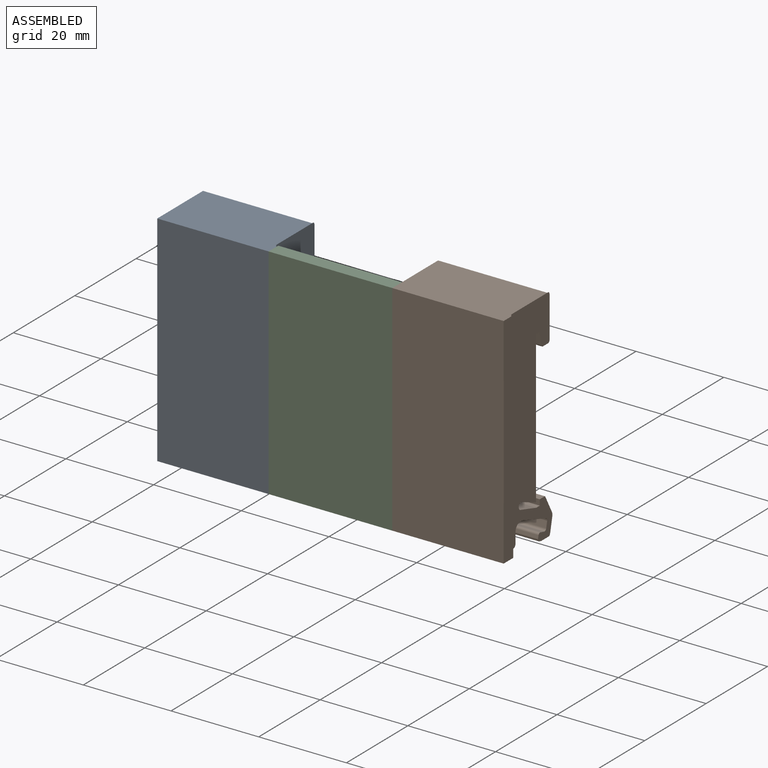
[diagram: assembled view]
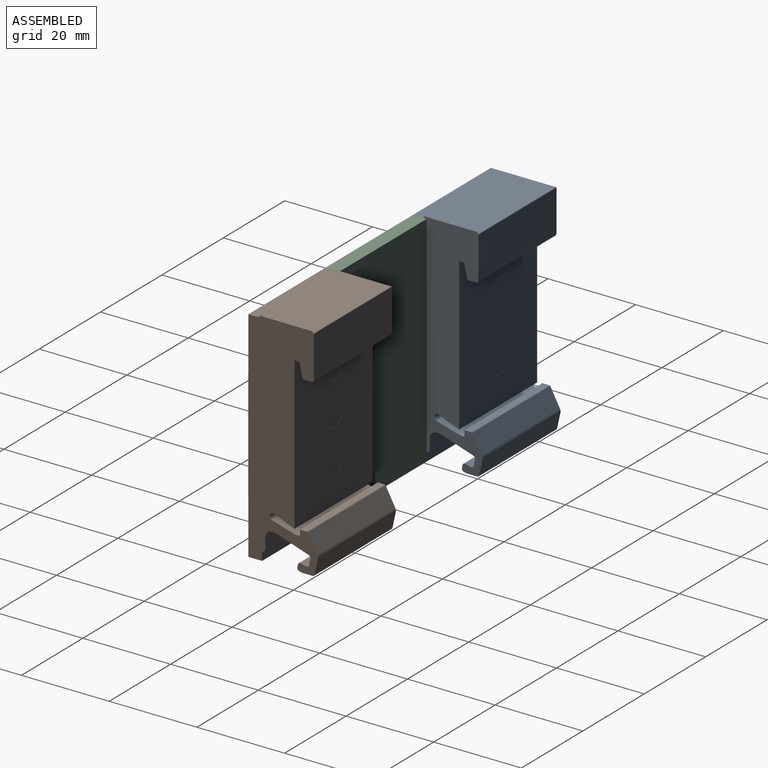
[diagram: assembled view, second angle]
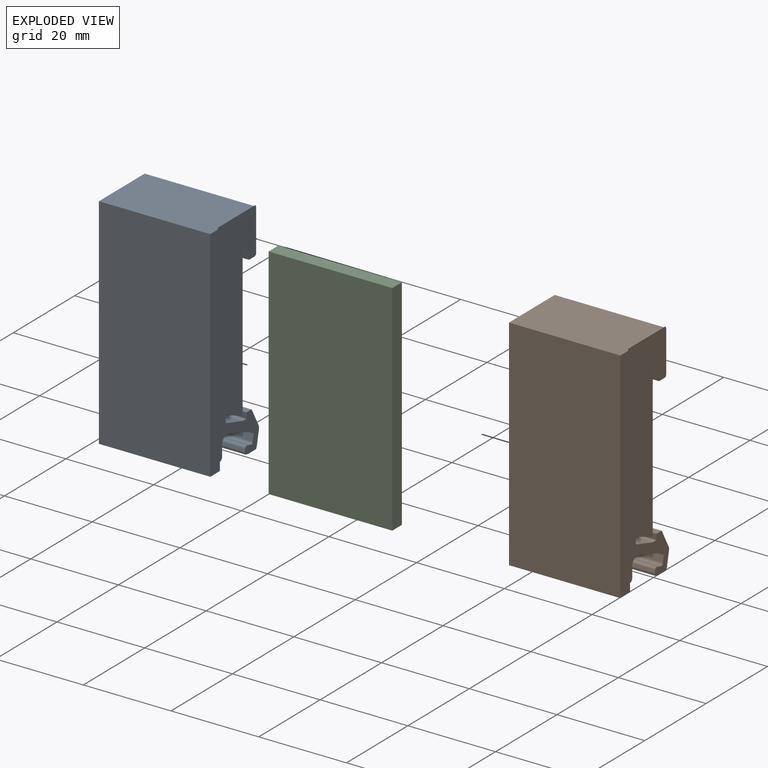
[diagram: exploded view]
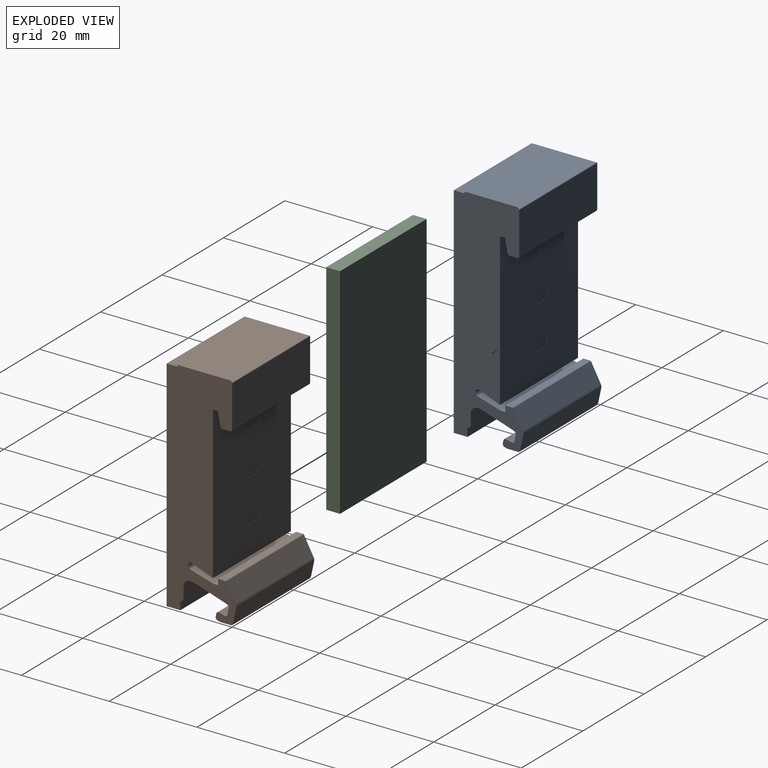
[diagram: exploded view, second angle]
ASSEMBLY  parts=3 mates=2
PART A: 287 faces, bbox 50.4x15.9x25.4 mm
  f0: plane 50x15.88mm, normal (0,0,-1), area 544.1mm2, adj f1,f4,f5,f7,f8,f14,f17,f23
  f1: plane 50x25.4mm, normal (0,1,0), area 1270mm2, adj f0,f2,f3,f6,f236,f237,f277,f278
  f2: plane 12.3x3.13mm, normal (0,0,1), area 31.9mm2, adj f1,f5,f207,f210,f213,f215,f217,f233
  f3: plane 50.4x15.87mm, normal (0,0,1), area 486.7mm2, adj f1,f7,f8,f9,f11,f13,f15,f18
  f4: plane 9.05x0.13mm, normal (0.28,-0.96,0), area 0.6mm2, adj f0,f32,f277
  f5: plane 25.4x1.9mm, normal (0,-1,0), area 48.2mm2, adj f0,f2,f254,f278
  f6: plane 12.3x2.48mm, normal (0,0,1), area 30.5mm2, adj f1,f234,f237,f277
  f7: plane 25.4x0.69mm, normal (-0.97,0.25,0), area 18.1mm2, adj f0,f3,f235,f275
  f8: plane 25.4x0.19mm, normal (-0.65,-0.76,0), area 6.2mm2, adj f0,f3,f261,f275
  f9: plane 17.27x0.12mm, normal (0.67,0.74,0), area 1.4mm2, adj f3,f10,f16
  f10: plane 17.27x0.19mm, normal (0.49,0.87,0), area 1.9mm2, adj f9,f11,f279
  f11: plane 17.27x0.15mm, normal (0.41,0.91,0), area 1.4mm2, adj f3,f10,f12
  f12: plane 17.27x0.79mm, normal (0.22,0.98,0), area 7mm2, adj f11,f13,f286
  f13: plane 17.27x0.77mm, normal (0.21,0.98,0), area 6.8mm2, adj f3,f12,f14
  f14: plane 25.4x0.32mm, normal (-0.14,0.99,0), area 5.2mm2, adj f0,f13,f15,f23,f286
  f15: plane 17.27x0.32mm, normal (-0.15,0.99,0), area 2.8mm2, adj f3,f14,f21
  f16: plane 17.27x0.12mm, normal (0.78,0.62,0), area 1.3mm2, adj f9,f20,f280
  f17: plane 25.4x0.19mm, normal (1,-0.03,0), area 3.2mm2, adj f0,f18,f256,f281
  f18: plane 17.27x0.21mm, normal (1,0,0), area 1.8mm2, adj f3,f17,f19
  f19: plane 17.27x0.14mm, normal (0.94,0.34,0), area 1.3mm2, adj f18,f20,f281
  f20: plane 17.27x0.19mm, normal (0.91,0.42,0), area 1.8mm2, adj f3,f16,f19
  f21: plane 17.27x0.14mm, normal (-0.57,0.82,0), area 1.4mm2, adj f3,f15,f22
  f22: plane 25.4x0.14mm, normal (-0.56,0.83,0), area 2.1mm2, adj f21,f23,f235
  f23: plane 8.13x0.17mm, normal (-0.49,0.87,0), area 0.8mm2, adj f0,f14,f22
  f24: plane 25.4x0.26mm, normal (-0.9,-0.44,0), area 3.7mm2, adj f3,f25,f273
  f25: plane 25.4x0.35mm, normal (-0.88,-0.47,0), area 5mm2, adj f0,f24,f26
  f26: plane 25.4x0.23mm, normal (-0.75,-0.67,0), area 2.5mm2, adj f0,f25,f27
  f27: plane 25.4x0.52mm, normal (-0.66,-0.75,0), area 8.9mm2, adj f3,f26,f28
  f28: plane 25.4x0.34mm, normal (-0.63,-0.78,0), area 2.6mm2, adj f0,f27,f29
  f29: plane 25.4x0.28mm, normal (-0.45,-0.89,0), area 3.9mm2, adj f0,f28,f30
  f30: plane 25.4x0.4mm, normal (-0.27,-0.96,0), area 4mm2, adj f0,f29,f31
  f31: plane 25.4x0.4mm, normal (-0.29,-0.96,0), area 5.3mm2, adj f3,f30,f274
  f32: plane 25.4x0.35mm, normal (0.35,-0.94,0), area 2.8mm2, adj f3,f4,f33,f241,f276,f277
  f33: plane 0.15x0.12mm, normal (0.77,-0.64,0), area 0mm2, adj f3,f32,f34,f276
  f34: plane 0.2x0.05mm, normal (0.97,-0.24,0), area 0mm2, adj f3,f33,f238,f276
  f35: plane 25.4x0.16mm, normal (-0.67,-0.74,0), area 2.7mm2, adj f0,f36,f37
  f36: plane 25.4x0.25mm, normal (-0.83,-0.55,0), area 3.9mm2, adj f3,f35,f40
  f37: plane 25.4x0.14mm, normal (-0.49,-0.87,0), area 2mm2, adj f3,f35,f38
  f38: plane 25.4x0.27mm, normal (-0.26,-0.97,0), area 3.6mm2, adj f0,f37,f39
  f39: plane 25.4x0.2mm, normal (-0.19,-0.98,0), area 2.6mm2, adj f3,f38,f241
  f40: plane 25.4x0.15mm, normal (-0.9,-0.44,0), area 2.2mm2, adj f0,f36,f240
  f41: plane 25.4x0.18mm, normal (-0.47,0.88,0), area 2.5mm2, adj f0,f42,f239
  f42: plane 25.4x0.21mm, normal (-0.5,0.87,0), area 3mm2, adj f3,f41,f43
  f43: plane 25.4x0.11mm, normal (-0.74,0.68,0), area 2mm2, adj f0,f42,f44
  f44: plane 25.4x0.34mm, normal (-0.95,0.3,0), area 3.3mm2, adj f0,f43,f46
  f45: plane 25.4x0.15mm, normal (-0.98,0.17,0), area 1.9mm2, adj f3,f46,f257
  f46: plane 25.4x0.34mm, normal (-0.84,0.55,0), area 2.9mm2, adj f3,f44,f45
  f47: plane 0.25x0.13mm, normal (-0.46,-0.01,0.89), area 0mm2, adj f48,f65,f97,f266
  f48: plane 0.03x0mm, normal (-0.58,0,0.82), area 0mm2, adj f47,f64,f266
  f49: plane 0.03x0mm, normal (0.95,0,-0.3), area 0mm2, adj f50,f243,f266
  f50: plane 0.88x0.26mm, normal (0.96,0,-0.29), area 0mm2, adj f49,f51,f97,f266
  f51: plane 0.03x0mm, normal (0.99,0,-0.14), area 0mm2, adj f50,f52,f266
  f52: plane 1x0.09mm, normal (1,0,-0.09), area 0mm2, adj f51,f53,f97,f266
  f53: plane 0.03x0mm, normal (1,0,0.05), area 0mm2, adj f52,f54,f266
  f54: plane 0.75x0.06mm, normal (1,0,0.08), area 0mm2, adj f53,f55,f97,f266
  f55: plane 0.03x0mm, normal (0.98,0,0.2), area 0mm2, adj f54,f56,f266
  f56: plane 0.92x0.22mm, normal (0.97,0,0.23), area 0mm2, adj f55,f57,f97,f266
  f57: plane 0.03x0mm, normal (0.92,0,0.4), area 0mm2, adj f56,f58,f266
  f58: plane 0.57x0.26mm, normal (0.91,0,0.42), area 0mm2, adj f57,f59,f97,f266
  f59: plane 0.03x0mm, normal (0.74,0,0.67), area 0mm2, adj f58,f60,f266
  f60: plane 0.58x0.57mm, normal (0.7,0.01,0.71), area 0mm2, adj f59,f61,f97,f266
  f61: plane 0.03x0mm, normal (0.32,0,0.95), area 0mm2, adj f60,f62,f266
  f62: plane 0.39x0.11mm, normal (0.27,0,0.96), area 0mm2, adj f61,f63,f97,f266
  f63: plane 0.26x0.04mm, normal (-0.17,0,0.99), area 0mm2, adj f62,f64,f97,f266
  f64: plane 0.03x0mm, normal (-0.16,0,0.99), area 0mm2, adj f48,f63,f266
  f65: plane 0.29x0.26mm, normal (-0.74,0,0.67), area 0mm2, adj f47,f70,f266
  f66: plane 0.36x0.19mm, normal (-0.89,0,0.46), area 0mm2, adj f67,f68,f97
  f67: plane 0.36x0.19mm, normal (-0.89,0,0.46), area 0mm2, adj f66,f72,f266
  f68: plane 0.03x0mm, normal (-0.91,0,0.42), area 0mm2, adj f66,f69,f266
  f69: plane 0.03x0mm, normal (-0.81,0,0.59), area 0mm2, adj f68,f71,f266
  f70: plane 0.51x0.45mm, normal (-0.74,0,0.67), area 0mm2, adj f65,f71,f97,f266
  f71: plane 0.03x0mm, normal (-0.8,0,0.59), area 0mm2, adj f69,f70,f266
  f72: plane 0.88x0.26mm, normal (-0.96,0,0.29), area 0mm2, adj f67,f95,f266
  f73: plane 0.52x0.18mm, normal (-0.32,-0.02,-0.95), area 0mm2, adj f74,f82,f97,f266
  f74: plane 0.03x0mm, normal (-0.1,0.01,-0.99), area 0mm2, adj f73,f75,f266
  f75: plane 0.03x0mm, normal (-0.75,-0.01,-0.66), area 0mm2, adj f74,f77,f266
  f76: plane 0.51x0.45mm, normal (-0.75,-0.01,-0.67), area 0mm2, adj f77,f78,f97
  f77: plane 0.51x0.45mm, normal (-0.75,-0.01,-0.67), area 0mm2, adj f75,f76,f266
  f78: plane 0.03x0mm, normal (-0.61,0.01,-0.79), area 0mm2, adj f76,f79,f266
  f79: plane 0.03x0mm, normal (-0.81,0,-0.59), area 0mm2, adj f78,f81,f266
  f80: plane 0.78x0.34mm, normal (-0.92,0,-0.4), area 0mm2, adj f81,f85,f97,f266
  f81: plane 0.03x0mm, normal (-0.92,0,-0.4), area 0mm2, adj f79,f80,f266
  f82: plane 0.39x0.11mm, normal (0.27,0,-0.96), area 0mm2, adj f73,f83,f97,f266
  f83: plane 0.03x0mm, normal (0.58,0,-0.82), area 0mm2, adj f82,f84,f266
  f84: plane 0.37x0.28mm, normal (0.61,0,-0.79), area 0mm2, adj f83,f97,f243,f266
  f85: plane 0.18x0.08mm, normal (-0.92,0,-0.4), area 0mm2, adj f80,f86,f266
  f86: plane 0.03x0mm, normal (-0.91,0,-0.42), area 0mm2, adj f85,f93,f266
  f87: plane 0.95x0.18mm, normal (-0.98,0,-0.19), area 0mm2, adj f88,f93,f97,f266
  f88: plane 0.03x0mm, normal (-0.96,0.01,-0.27), area 0mm2, adj f87,f89,f266
  f89: plane 0.03x0mm, normal (-0.99,0,-0.14), area 0mm2, adj f88,f92,f266
  f90: plane 0.16x0.03mm, normal (-0.99,0,0.11), area 0mm2, adj f91,f94,f266
  f91: plane 0.76x0.03mm, normal (-1,0,-0.01), area 0mm2, adj f90,f92,f97,f266
  f92: plane 0.03x0mm, normal (-1,0,-0.02), area 0mm2, adj f89,f91,f266
  f93: plane 0.03x0mm, normal (-0.98,0,-0.2), area 0mm2, adj f86,f87,f266
  f94: plane 0.75x0.08mm, normal (-0.99,0,0.11), area 0mm2, adj f90,f96,f97,f266
  f95: plane 0.88x0.26mm, normal (-0.96,0,0.29), area 0mm2, adj f72,f96,f97
  f96: plane 0.03x0mm, normal (-0.96,0,0.27), area 0mm2, adj f94,f95,f266
  f97: plane 34.72x25.4mm, normal (0,-1,0), area 841.2mm2, adj f0,f3,f47,f50,f52,f54,f56,f58
  f98: plane 0.16x0.03mm, normal (0.99,0,0.11), area 0mm2, adj f99,f113,f268
  f99: plane 0.03x0mm, normal (0.99,0,0.14), area 0mm2, adj f98,f100,f268
  f100: plane 0.03x0mm, normal (1,0,0.02), area 0mm2, adj f99,f112,f268
  f101: plane 0.72x0.12mm, normal (0.99,0,-0.17), area 0mm2, adj f97,f102,f111,f268
  f102: plane 0.03x0mm, normal (0.99,0,-0.11), area 0mm2, adj f101,f103,f268
  f103: plane 0.03x0mm, normal (0.97,0,-0.23), area 0mm2, adj f102,f110,f268
  f104: plane 0.82x0.8mm, normal (0.71,0.01,-0.7), area 0mm2, adj f97,f105,f107,f268
  f105: plane 0.03x0mm, normal (0.8,0.02,-0.59), area 0mm2, adj f104,f106,f268
  f106: plane 0.03x0mm, normal (0.57,0,-0.82), area 0mm2, adj f105,f185,f268
  f107: plane 0.03x0mm, normal (0.92,0,-0.4), area 0mm2, adj f104,f108,f268
  f108: plane 0.83x0.3mm, normal (0.94,0,-0.34), area 0mm2, adj f97,f107,f109
  f109: plane 0.83x0.3mm, normal (0.94,0,-0.34), area 0mm2, adj f108,f110,f268
  f110: plane 0.03x0mm, normal (0.93,0,-0.37), area 0mm2, adj f103,f109,f268
  f111: plane 0.76x0.03mm, normal (1,0,-0.02), area 0mm2, adj f97,f101,f112,f268
  f112: plane 0.03x0mm, normal (1,0,0.02), area 0mm2, adj f100,f111,f268
  f113: plane 0.75x0.08mm, normal (0.99,0,0.11), area 0mm2, adj f97,f98,f262,f268
  f114: plane 0.03x0mm, normal (0.17,0.01,-0.99), area 0mm2, adj f115,f185,f268
  f115: plane 0.03x0mm, normal (-0.32,-0.01,-0.95), area 0mm2, adj f114,f139,f268
  f116: plane 0.83x0.3mm, normal (-0.94,0,0.34), area 0mm2, adj f97,f117,f124,f268
  f117: plane 0.03x0mm, normal (-0.94,0,0.34), area 0mm2, adj f116,f123,f268
  f118: plane 0.2x0.07mm, normal (-0.32,0,0.95), area 0mm2, adj f119,f141,f268
  f119: plane 0.03x0mm, normal (-0.67,0,0.74), area 0mm2, adj f118,f120,f268
  f120: plane 0.24x0.22mm, normal (-0.67,0,0.74), area 0mm2, adj f97,f119,f121,f268
  f121: plane 0.47x0.31mm, normal (-0.84,0,0.55), area 0mm2, adj f120,f122,f268
  f122: plane 0.47x0.31mm, normal (-0.84,0,0.55), area 0mm2, adj f97,f121,f123
  f123: plane 0.03x0mm, normal (-0.87,0,0.5), area 0mm2, adj f117,f122,f268
  f124: plane 0.03x0mm, normal (-0.98,0,0.18), area 0mm2, adj f116,f125,f268
  f125: plane 0.82x0.11mm, normal (-0.99,0,0.14), area 0mm2, adj f124,f140,f268
  f126: plane 0.51x0.45mm, normal (-0.75,0,-0.67), area 0mm2, adj f97,f127,f139,f268
  f127: plane 0.03x0mm, normal (-0.73,0,-0.69), area 0mm2, adj f126,f138,f268
  f128: plane 0.78x0.34mm, normal (-0.92,-0.01,-0.4), area 0mm2, adj f97,f129,f138,f268
  f129: plane 0.03x0mm, normal (-0.87,0.01,-0.5), area 0mm2, adj f128,f137,f268
  f130: plane 0.16x0.03mm, normal (-0.99,0,0.14), area 0mm2, adj f131,f140,f268
  f131: plane 0.03x0mm, normal (-1,0,0), area 0mm2, adj f130,f132,f268
  f132: plane 1.01x0.05mm, normal (-1,0,-0.05), area 0mm2, adj f97,f131,f133
  f133: plane 1x0.05mm, normal (-1,0,-0.05), area 0mm2, adj f132,f134,f268
  f134: plane 0.03x0mm, normal (-0.98,0,-0.19), area 0mm2, adj f133,f135,f268
  f135: plane 0.71x0.15mm, normal (-0.98,0,-0.2), area 0mm2, adj f97,f134,f136,f268
  f136: plane 0.03x0mm, normal (-0.98,0,-0.19), area 0mm2, adj f135,f137,f268
  f137: plane 0.03x0mm, normal (-0.94,0,-0.34), area 0mm2, adj f129,f136,f268
  f138: plane 0.03x0mm, normal (-0.91,0,-0.42), area 0mm2, adj f127,f128,f268
  f139: plane 0.25x0.13mm, normal (-0.46,0,-0.89), area 0mm2, adj f97,f115,f126,f268
  f140: plane 0.98x0.14mm, normal (-0.99,0,0.14), area 0mm2, adj f97,f125,f130
  f141: plane 0.52x0.18mm, normal (-0.32,0,0.95), area 0mm2, adj f97,f118,f142,f268
  f142: plane 0.03x0mm, normal (-0.27,0,0.96), area 0mm2, adj f141,f265,f268
  f143: plane 0.65x0.4mm, normal (0.85,0,0.52), area 0mm2, adj f97,f144,f201,f267
  f144: plane 0.65x0.21mm, normal (0.95,0,0.3), area 0mm2, adj f97,f143,f161,f267
  f145: plane 0.03x0mm, normal (0.99,0,0.11), area 0mm2, adj f146,f160,f267
  f146: plane 0.76x0.03mm, normal (1,0,-0.02), area 0mm2, adj f97,f145,f147,f267
  f147: plane 0.03x0mm, normal (1,0,-0.05), area 0mm2, adj f146,f159,f267
  f148: plane 0.25x0.13mm, normal (0.46,-0.01,-0.89), area 0mm2, adj f97,f149,f150
  f149: plane 0.25x0.13mm, normal (0.46,-0.01,-0.89), area 0mm2, adj f148,f152,f267
  f150: plane 0.03x0mm, normal (0.57,0,-0.82), area 0mm2, adj f148,f151,f267
  f151: plane 0.03x0mm, normal (0.17,0,-0.99), area 0mm2, adj f150,f203,f267
  f152: plane 0.51x0.45mm, normal (0.75,0,-0.67), area 0mm2, adj f97,f149,f153,f267
  f153: plane 0.03x0mm, normal (0.81,0,-0.59), area 0mm2, adj f152,f154,f267
  f154: plane 0.03x0mm, normal (0.91,0,-0.42), area 0mm2, adj f153,f155,f267
  f155: plane 0.78x0.34mm, normal (0.92,0,-0.4), area 0mm2, adj f97,f154,f156,f267
  f156: plane 0.19x0.08mm, normal (0.92,0,-0.4), area 0mm2, adj f155,f157,f267
  f157: plane 0.03x0mm, normal (0.97,0,-0.23), area 0mm2, adj f156,f158,f267
  f158: plane 0.95x0.18mm, normal (0.98,0,-0.18), area 0mm2, adj f97,f157,f159
  f159: plane 0.95x0.18mm, normal (0.98,0,-0.18), area 0mm2, adj f147,f158,f267
  f160: plane 0.98x0.14mm, normal (0.99,0,0.14), area 0mm2, adj f97,f145,f161,f267
  f161: plane 0.03x0mm, normal (0.96,0,0.28), area 0mm2, adj f144,f160,f267
  f162: plane 0.03x0mm, normal (-0.27,0,0.96), area 0mm2, adj f163,f202,f267
  f163: plane 0.52x0.18mm, normal (-0.32,0,0.95), area 0mm2, adj f97,f162,f164,f267
  f164: plane 0.03x0mm, normal (-0.67,0,0.74), area 0mm2, adj f163,f165,f267
  f165: plane 0.29x0.27mm, normal (-0.72,0,0.69), area 0mm2, adj f164,f166,f267
  f166: plane 0.36x0.35mm, normal (-0.72,0,0.69), area 0mm2, adj f97,f165,f205,f267
  f167: plane 0.49x0.35mm, normal (-0.57,0,-0.82), area 0mm2, adj f97,f168,f174,f267
  f168: plane 0.03x0mm, normal (-0.45,0.01,-0.89), area 0mm2, adj f167,f169,f267
  f169: plane 0.03x0mm, normal (-0.75,0,-0.66), area 0mm2, adj f168,f173,f267
  f170: plane 0.42x0.15mm, normal (-0.94,0,-0.34), area 0mm2, adj f97,f171,f179,f267
  f171: plane 0.03x0mm, normal (-0.92,0,-0.4), area 0mm2, adj f170,f172,f267
  f172: plane 0.65x0.4mm, normal (-0.85,0,-0.52), area 0mm2, adj f97,f171,f173,f267
  f173: plane 0.03x0mm, normal (-0.74,0,-0.67), area 0mm2, adj f169,f172,f267
  f174: plane 0.03x0mm, normal (-0.17,0,-0.99), area 0mm2, adj f167,f203,f267
  f175: plane 0.03x0mm, normal (-1,0,-0.01), area 0mm2, adj f176,f204,f267
  f176: plane 1.01x0.05mm, normal (-1,0,-0.05), area 0mm2, adj f97,f175,f177
  f177: plane 1x0.05mm, normal (-1,0,-0.05), area 0mm2, adj f176,f178,f267
  f178: plane 0.03x0mm, normal (-0.98,0,-0.19), area 0mm2, adj f177,f179,f267
  f179: plane 0.71x0.15mm, normal (-0.98,0,-0.2), area 0mm2, adj f97,f170,f178,f267
  f180: plane 25.4x4.7mm, normal (-0.93,0.37,0), area 128.3mm2, adj f0,f3,f97,f183
  f181: plane 25.4x0.24mm, normal (-1,-0.09,0), area 3.1mm2, adj f3,f182,f247
  f182: plane 25.4x0.24mm, normal (-0.99,-0.16,0), area 2.3mm2, adj f0,f181,f184
  f183: plane 25.4x0.18mm, normal (-0.98,0.22,0), area 2.3mm2, adj f3,f180,f184
  f184: plane 25.4x0.24mm, normal (-0.98,0.19,0), area 3.1mm2, adj f0,f182,f183
  f185: plane 0.53x0.03mm, normal (0,0,-1), area 0mm2, adj f97,f106,f114,f268
  f186: plane 25.4x0.16mm, normal (0.86,-0.5,0), area 2.4mm2, adj f0,f187,f271
  f187: plane 25.4x0.21mm, normal (0.85,-0.53,0), area 3.2mm2, adj f3,f186,f195
  f188: plane 25.4x0.25mm, normal (-0.51,-0.86,0), area 3.7mm2, adj f3,f189,f191
  f189: plane 25.4x0.45mm, normal (-0.12,-0.99,0), area 5.8mm2, adj f0,f188,f190
  f190: plane 25.4x0.42mm, normal (-0.15,-0.99,0), area 4.6mm2, adj f3,f189,f192
  f191: plane 25.4x0.22mm, normal (-0.54,-0.84,0), area 3.3mm2, adj f0,f188,f247
  f192: plane 25.4x0.28mm, normal (0.33,-0.94,0), area 2.9mm2, adj f0,f190,f193
  f193: plane 25.4x0.31mm, normal (0.27,-0.96,0), area 4.1mm2, adj f3,f192,f194
  f194: plane 25.4x0.24mm, normal (0.61,-0.79,0), area 3.3mm2, adj f3,f193,f195
  f195: plane 25.4x0.27mm, normal (0.62,-0.79,0), area 4.4mm2, adj f0,f187,f194
  f196: plane 25.4x0.38mm, normal (0.22,-0.98,0), area 4.9mm2, adj f3,f197,f258
  f197: plane 25.4x0.38mm, normal (0.34,-0.94,0), area 2.2mm2, adj f0,f196,f198
  f198: plane 25.4x0.22mm, normal (0.18,-0.98,0), area 2.2mm2, adj f0,f197,f199
  f199: plane 25.4x0.35mm, normal (-0.05,-1,0), area 4.4mm2, adj f0,f198,f200
  f200: plane 25.4x0.3mm, normal (-0.04,-1,0), area 3.8mm2, adj f3,f199,f269
  f201: plane 0.49x0.35mm, normal (0.58,0,0.82), area 0mm2, adj f97,f143,f202,f267
  f202: plane 0.26x0.04mm, normal (0.17,0,0.99), area 0mm2, adj f97,f162,f201,f267
  f203: plane 0.53x0.03mm, normal (0,0.01,-1), area 0mm2, adj f97,f151,f174,f267
  f204: plane 0.75x0.08mm, normal (-0.99,0,0.11), area 0mm2, adj f97,f175,f206,f267
  f205: plane 0.51x0.29mm, normal (-0.86,0,0.5), area 0mm2, adj f97,f166,f206,f267
  f206: plane 0.88x0.26mm, normal (-0.96,0,0.29), area 0mm2, adj f97,f204,f205,f267
  f207: plane 0.23x0.04mm, normal (-0.17,0.99,0), area 0mm2, adj f2,f3,f208,f233
  f208: plane 0x0mm, normal (-0.46,0.89,0), area 0mm2, adj f207,f209
  f209: plane 0.31x0.16mm, normal (-0.46,0.89,0), area 0mm2, adj f3,f208,f210
  f210: plane 0.31x0.16mm, normal (-0.46,0.89,0), area 0mm2, adj f2,f209,f211
  f211: plane 0x0mm, normal (-0.69,0.72,0), area 0mm2, adj f210,f212
  f212: plane 0x0mm, normal (-1,0,0.01), area 0mm2, adj f211,f214
  f213: plane 0.25x0.19mm, normal (-0.8,0.6,0), area 0mm2, adj f2,f214,f215
  f214: plane 0.25x0.19mm, normal (-0.8,0.6,0), area 0mm2, adj f3,f212,f213
  f215: plane 0.08x0.02mm, normal (-0.97,0.23,0), area 0mm2, adj f2,f213,f216
  f216: plane 0.24x0.06mm, normal (-0.97,0.23,0), area 0mm2, adj f3,f215,f217
  f217: plane 0.16x0.04mm, normal (-0.97,0.23,0), area 0mm2, adj f2,f216,f254
  f218: plane 17.27x0.12mm, normal (0.99,-0.1,0), area 1mm2, adj f3,f219,f256
  f219: plane 17.27x0.23mm, normal (1,0.01,0), area 2mm2, adj f218,f220,f282
  f220: plane 17.27x0.22mm, normal (0.96,0.3,0), area 2mm2, adj f3,f219,f221
  f221: plane 17.27x0.23mm, normal (0.84,0.54,0), area 2.4mm2, adj f220,f222,f283
  f222: plane 17.27x0.18mm, normal (0.71,0.7,0), area 2.2mm2, adj f3,f221,f223
  f223: plane 17.27x0.26mm, normal (0.43,0.9,0), area 2.5mm2, adj f222,f224,f284
  f224: plane 17.27x0.18mm, normal (0.36,0.93,0), area 1.6mm2, adj f3,f223,f225
  f225: plane 25.4x1.48mm, normal (0.21,0.98,0), area 38.5mm2, adj f0,f3,f224,f226,f284
  f226: plane 25.4x0.3mm, normal (-0.06,1,0), area 7.6mm2, adj f0,f3,f225,f231,f285
  f227: plane 25.4x0.22mm, normal (-0.91,0.42,0), area 4mm2, adj f0,f228,f229,f285
  f228: plane 25.4x5.6mm, normal (-0.95,0.31,0), area 98.8mm2, adj f0,f227,f232,f244
  f229: plane 17.27x0.3mm, normal (-0.85,0.53,0), area 3.1mm2, adj f3,f227,f230
  f230: plane 17.27x0.24mm, normal (-0.56,0.83,0), area 2.5mm2, adj f229,f231,f285
  f231: plane 17.27x0.15mm, normal (-0.46,0.89,0), area 1.5mm2, adj f3,f226,f230
  f232: plane 17.27x7.22mm, normal (-0.95,0.31,0), area 65.6mm2, adj f3,f228,f244
  f233: plane 9.62x0mm, normal (0,1,0), area 0mm2, adj f2,f3,f207,f236
  f234: plane 12.7x0mm, normal (0,1,0), area 0mm2, adj f3,f6,f237,f238,f276
  f235: plane 25.4x0.23mm, normal (-0.85,0.52,0), area 6.8mm2, adj f0,f3,f7,f22
  f236: plane 2.48x0mm, normal (-1,0,0), area 0mm2, adj f1,f2,f3,f233
  f237: plane 2.48x0mm, normal (1,0,0), area 0mm2, adj f1,f3,f6,f234
  f238: plane 11.98x0mm, normal (1,0,0), area 0mm2, adj f3,f34,f234,f276
  f239: plane 25.4x3.06mm, normal (-0.2,0.98,0), area 79.2mm2, adj f0,f3,f41,f242
  f240: plane 25.4x0.11mm, normal (-0.99,-0.14,0), area 2.9mm2, adj f0,f3,f40,f257
  f241: plane 25.4x9.45mm, normal (0,-1,0), area 240.1mm2, adj f0,f3,f32,f39
  f242: plane 25.4x1.13mm, normal (-1,0,0), area 28.7mm2, adj f0,f3,f97,f239
  f243: plane 0.65x0.4mm, normal (0.85,0,-0.52), area 0mm2, adj f49,f84,f97,f266
  f244: plane 25.4x1.62mm, normal (-0.95,0.31,0), area 28.5mm2, adj f0,f228,f232,f270
  f245: plane 25.4x0.46mm, normal (-1,0.08,0), area 11.6mm2, adj f0,f3,f246,f270
  f246: plane 25.4x0.46mm, normal (-1,-0.08,0), area 11.6mm2, adj f0,f3,f245,f273
  f247: plane 25.4x0.31mm, normal (-0.85,-0.53,0), area 9.4mm2, adj f0,f3,f181,f191
  f248: plane 25.4x1.12mm, normal (1,0,0), area 28.5mm2, adj f0,f3,f255,f271
  f249: plane 25.4x2.51mm, normal (0,-1,0), area 63.7mm2, adj f0,f3,f253,f274
  f250: plane 25.4x0.18mm, normal (-0.98,-0.2,0), area 4.7mm2, adj f0,f3,f254,f272
  f251: plane 25.4x0.19mm, normal (-0.66,-0.75,0), area 6.5mm2, adj f0,f3,f252,f272
  f252: plane 25.4x0.24mm, normal (-0.38,-0.92,0), area 6.6mm2, adj f0,f3,f251,f253
  f253: plane 25.4x0.2mm, normal (-0.13,-0.99,0), area 5.1mm2, adj f0,f3,f249,f252
  f254: plane 25.4x0.04mm, normal (-0.97,0.23,0), area 1.1mm2, adj f0,f5,f217,f250
  f255: plane 25.4x1.31mm, normal (0,1,0), area 33.4mm2, adj f0,f3,f248,f260
  f256: plane 25.4x1.34mm, normal (0.97,-0.25,0), area 35.2mm2, adj f0,f3,f17,f218,f282
  f257: plane 25.4x1.71mm, normal (-1,0,0), area 43.5mm2, adj f0,f3,f45,f240
  f258: plane 25.4x4.22mm, normal (0.48,-0.88,0), area 121.8mm2, adj f0,f3,f196,f259
  f259: plane 25.4x0.15mm, normal (0.94,-0.35,0), area 4mm2, adj f0,f3,f258,f260
  f260: plane 25.4x1.6mm, normal (1,0,0), area 40.6mm2, adj f0,f3,f255,f259
  f261: plane 25.4x0.42mm, normal (-0.37,-0.93,0), area 11.4mm2, adj f0,f3,f8,f269
  f262: plane 0.88x0.26mm, normal (0.96,0,0.29), area 0mm2, adj f97,f113,f263,f268
  f263: plane 0.65x0.4mm, normal (0.85,0,0.52), area 0mm2, adj f97,f262,f264,f268
  f264: plane 0.49x0.35mm, normal (0.58,0,0.82), area 0mm2, adj f97,f263,f265,f268
  f265: plane 0.26x0.04mm, normal (0.17,0,0.99), area 0mm2, adj f97,f142,f264,f268
  f266: plane 5.84x3.01mm, normal (0,-1,0), area 13.6mm2, adj f47,f48,f49,f50,f51,f52,f53,f54
  f267: plane 5.8x3mm, normal (0,-1,0), area 13.6mm2, adj f143,f144,f145,f146,f147,f149,f150,f151
  f268: plane 5.8x3mm, normal (0,-1,0), area 13.5mm2, adj f98,f99,f100,f101,f102,f103,f104,f105
  f269: plane 25.4x3.22mm, normal (-0.21,-0.98,0), area 83.6mm2, adj f0,f3,f200,f261
  f270: plane 25.4x0.45mm, normal (-0.97,0.24,0), area 11.7mm2, adj f0,f3,f244,f245
  f271: plane 25.4x5.27mm, normal (0.96,-0.28,0), area 139.5mm2, adj f0,f3,f186,f248
  f272: plane 25.4x0.22mm, normal (-0.88,-0.48,0), area 6.3mm2, adj f0,f3,f250,f251
  f273: plane 25.4x0.45mm, normal (-0.97,-0.23,0), area 11.7mm2, adj f0,f3,f24,f246
  f274: plane 25.4x0.21mm, normal (-0.07,-1,0), area 5.3mm2, adj f0,f3,f31,f249
  f275: plane 25.4x2.61mm, normal (-1,0,0), area 66.2mm2, adj f0,f3,f7,f8
  f276: plane 12.42x0.4mm, normal (0,0,-1), area 4.9mm2, adj f32,f33,f34,f234,f238,f277
  f277: plane 25.4x14.91mm, normal (1,0,0), area 378.4mm2, adj f0,f1,f4,f6,f32,f276
  f278: plane 25.4x3.13mm, normal (-1,0,0), area 79.4mm2, adj f0,f1,f2,f5
  f279: plane 8.13x0.19mm, normal (0.49,0.87,0), area 1.8mm2, adj f0,f10,f280,f286
  f280: plane 8.13x0.12mm, normal (0.78,0.62,0), area 1.3mm2, adj f0,f16,f279,f281
  f281: plane 8.13x0.14mm, normal (0.94,0.34,0), area 1.2mm2, adj f0,f17,f19,f280
  f282: plane 8.13x0.23mm, normal (1,0.01,0), area 1.9mm2, adj f0,f219,f256,f283
  f283: plane 8.13x0.23mm, normal (0.84,0.54,0), area 2.2mm2, adj f0,f221,f282,f284
  f284: plane 8.13x0.26mm, normal (0.43,0.9,0), area 2.3mm2, adj f0,f223,f225,f283
  f285: plane 8.13x0.24mm, normal (-0.56,0.83,0), area 2.4mm2, adj f0,f226,f227,f230
  f286: plane 8.13x0.79mm, normal (0.22,0.98,0), area 6.6mm2, adj f0,f12,f14,f279
PART B: same geometry as A
PART C: 6 faces, bbox 50x28.2x3.1 mm
  f0: plane 28.2x3.13mm, normal (-1,0,0), area 88.2mm2, adj f1,f3,f4,f5
  f1: plane 50x3.13mm, normal (0,-1,0), area 156.4mm2, adj f0,f2,f4,f5
  f2: plane 28.2x3.13mm, normal (1,0,0), area 88.2mm2, adj f1,f3,f4,f5
  f3: plane 50x3.13mm, normal (0,1,0), area 156.4mm2, adj f0,f2,f4,f5
  f4: plane 50x28.2mm, normal (0,0,1), area 1410.2mm2, adj f0,f1,f2,f3
  f5: plane 50x28.2mm, normal (0,0,-1), area 1410.2mm2, adj f0,f1,f2,f3
PLACE A rot(axis=(0.71,0,0.71),180deg) t=(-43.68,35.98,103.32)mm
PLACE B rot(axis=(0.71,0,0.71),180deg) t=(9.93,35.98,103.32)mm
PLACE C rot(axis=(0.58,-0.58,0.58),120deg) t=(9.93,29.58,78.32)mm
MATE fastened B.f0 <-> C.f1  axis (-1,0,0) through (9.93,26.45,128.32)mm
MATE fastened A.f2 <-> C.f3  axis (1,0,0) through (-18.28,26.45,78.32)mm
